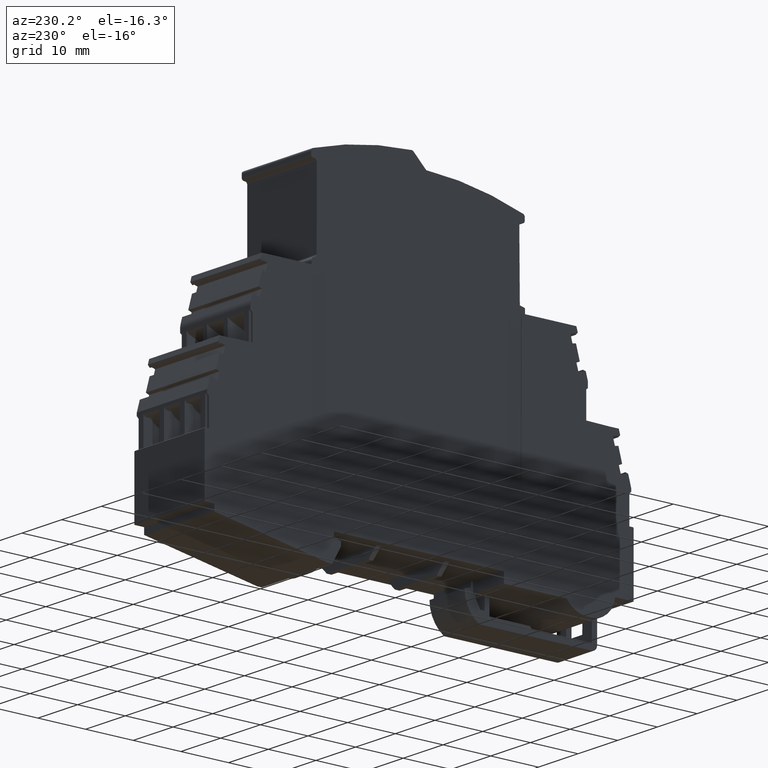
[diagram: clean part render]
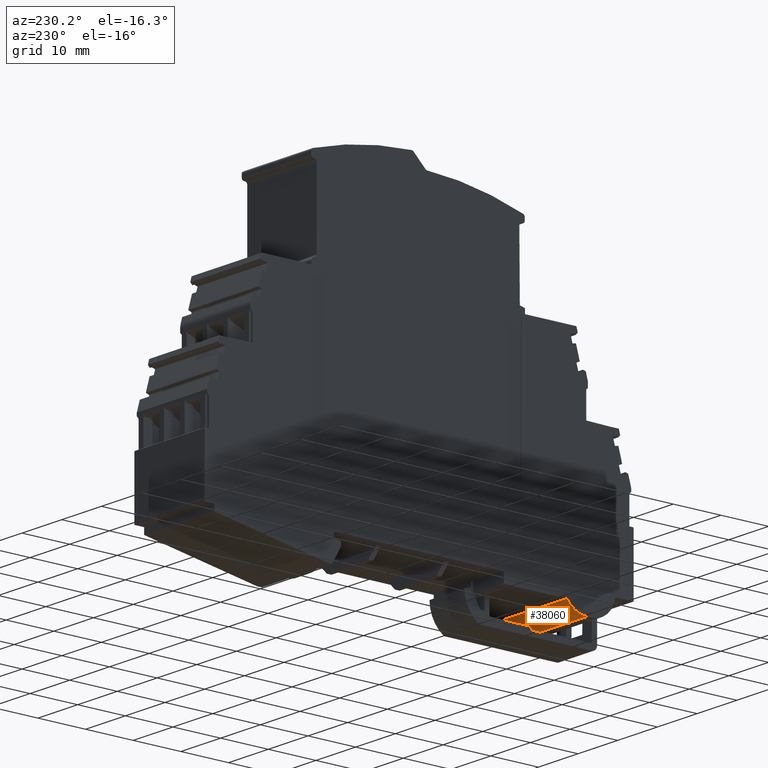
[diagram: same view with one face highlighted and labeled with its STEP entity id]
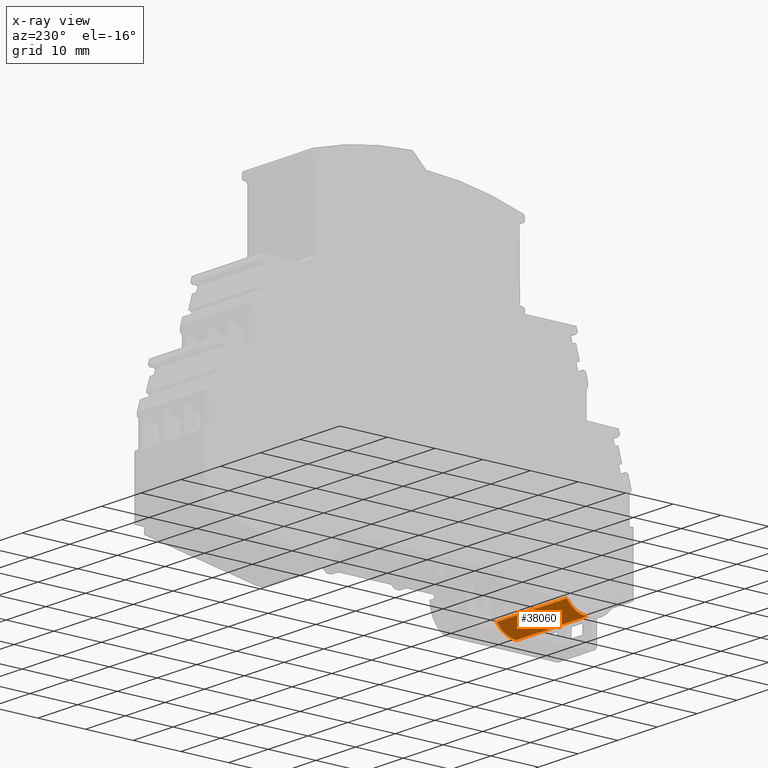
[diagram: x-ray of the same camera — body ghosted, the highlighted face saturated]
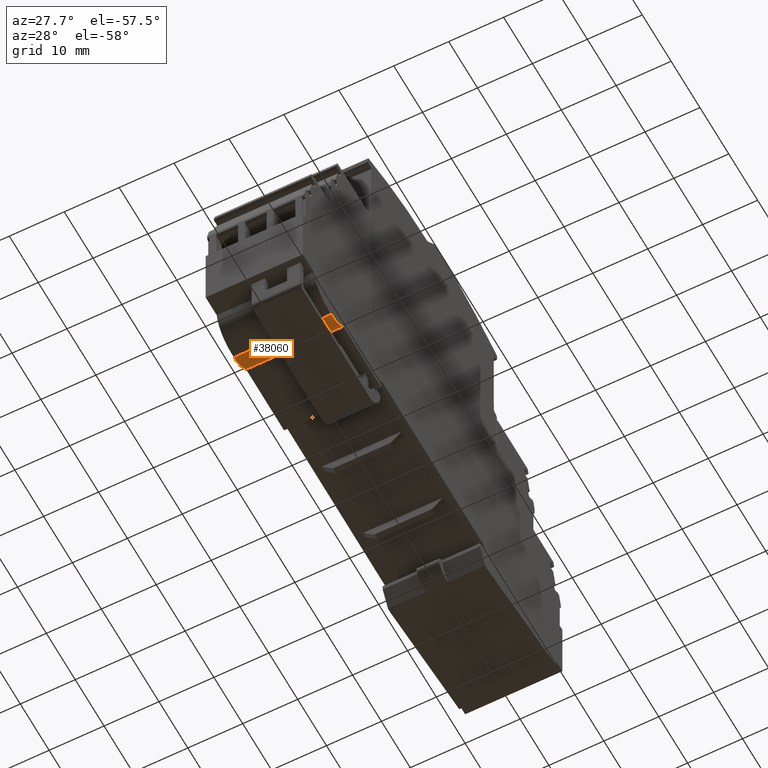
[diagram: same view with one face highlighted and labeled with its STEP entity id]
A machine part, auxiliary view. The second image highlights one B-rep face of the part: STEP entity #38060.
The next image is the same camera in x-ray: the body ghosted, the highlighted face saturated — about 3% of this face is hidden behind the body in this view.
A second angle (auxiliary view) of the same face is appended — the face is thin or edge-on in the first view.
In plain terms, the highlighted cylindrical surface (edge-blend (fillet) strip) has radius 5 mm, axis along (1, -0, -0).
Its self-contained STEP definition (entity closure, byte-faithful):
#23910=CARTESIAN_POINT('',(65.0382364215705,153.688442354986,
82.0427164269616));
#23920=VERTEX_POINT('',#23910);
#23950=CARTESIAN_POINT('',(60.8720632632915,156.45300194446,
82.057259173792));
#23960=DIRECTION('',(0.00349065141522373,4.73236598232702E-16,
0.999993907657791));
#23970=DIRECTION('',(0.999987815352698,-0.00349065141522429,
-0.00349063014898079));
#23980=AXIS2_PLACEMENT_3D('',#23950,#23960,#23970);
#23990=CIRCLE('',#23980,5.);
#24000=CARTESIAN_POINT('',(60.8546101125466,151.453032406171,
82.0573200970286));
#24010=VERTEX_POINT('',#24000);
#24020=EDGE_CURVE('',#24010,#23920,#23990,.T.);
#37610=CARTESIAN_POINT('',(64.9764518915211,153.688442354986,
64.3428242614188));
#37620=VERTEX_POINT('',#37610);
#37650=CARTESIAN_POINT('',(64.9764518915211,153.688442354986,
64.3428242614188));
#37660=DIRECTION('',(0.00349065141522373,4.7248443297554E-16,
0.999993907657791));
#37670=VECTOR('',#37660,1.);
#37680=LINE('',#37650,#37670);
#37690=EDGE_CURVE('',#37620,#23920,#37680,.T.);
#37820=CARTESIAN_POINT('',(60.810278733242,156.45300194446,
64.3573670082492));
#37830=DIRECTION('',(0.00349065141522373,4.7248443297554E-16,
0.999993907657791));
#37840=DIRECTION('',(0.999987815352698,-0.00349065141522429,
-0.00349063014898079));
#37850=AXIS2_PLACEMENT_3D('',#37820,#37830,#37840);
#37860=CYLINDRICAL_SURFACE('',#37850,5.);
#37870=CARTESIAN_POINT('',(60.7928255824971,151.453032406171,
64.3574279314857));
#37880=DIRECTION('',(0.00349065141522373,4.7248443297554E-16,
0.999993907657791));
#37890=VECTOR('',#37880,1.);
#37900=LINE('',#37870,#37890);
#37910=CARTESIAN_POINT('',(60.7928255824971,151.453032406171,
64.3574279314857));
#37920=VERTEX_POINT('',#37910);
#37930=EDGE_CURVE('',#37920,#24010,#37900,.T.);
#37940=ORIENTED_EDGE('',*,*,#37930,.F.);
#37950=ORIENTED_EDGE('',*,*,#24020,.F.);
#37960=ORIENTED_EDGE('',*,*,#37690,.T.);
#37970=CARTESIAN_POINT('',(60.810278733242,156.45300194446,
64.3573670082492));
#37980=DIRECTION('',(0.00349065141522373,4.7248443297554E-16,
0.999993907657791));
#37990=DIRECTION('',(0.999987815352698,-0.00349065141522429,
-0.00349063014898079));
#38000=AXIS2_PLACEMENT_3D('',#37970,#37980,#37990);
#38010=CIRCLE('',#38000,5.);
#38020=EDGE_CURVE('',#37920,#37620,#38010,.T.);
#38030=ORIENTED_EDGE('',*,*,#38020,.T.);
#38040=EDGE_LOOP('',(#38030,#37960,#37950,#37940));
#38050=FACE_OUTER_BOUND('',#38040,.T.);
#38060=ADVANCED_FACE('',(#38050),#37860,.T.);